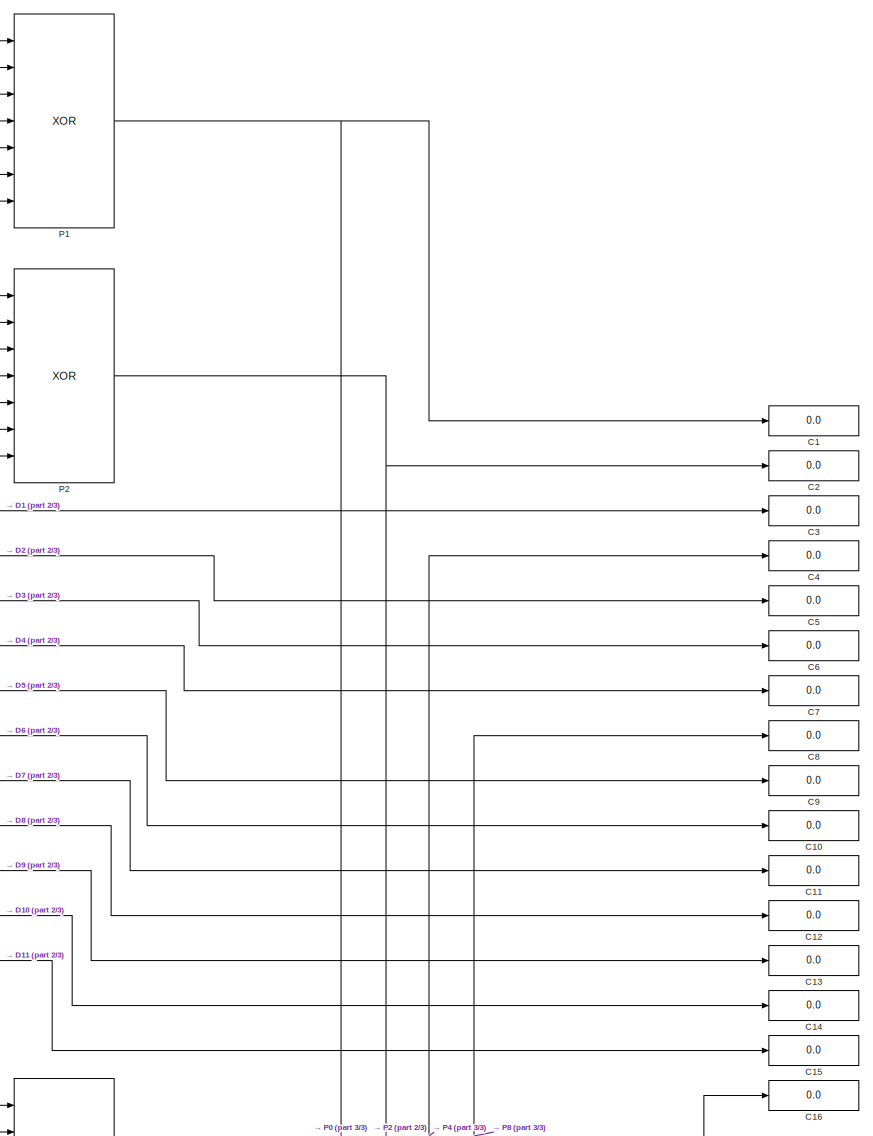
[diagram: root canvas - part 1/3, top right region]
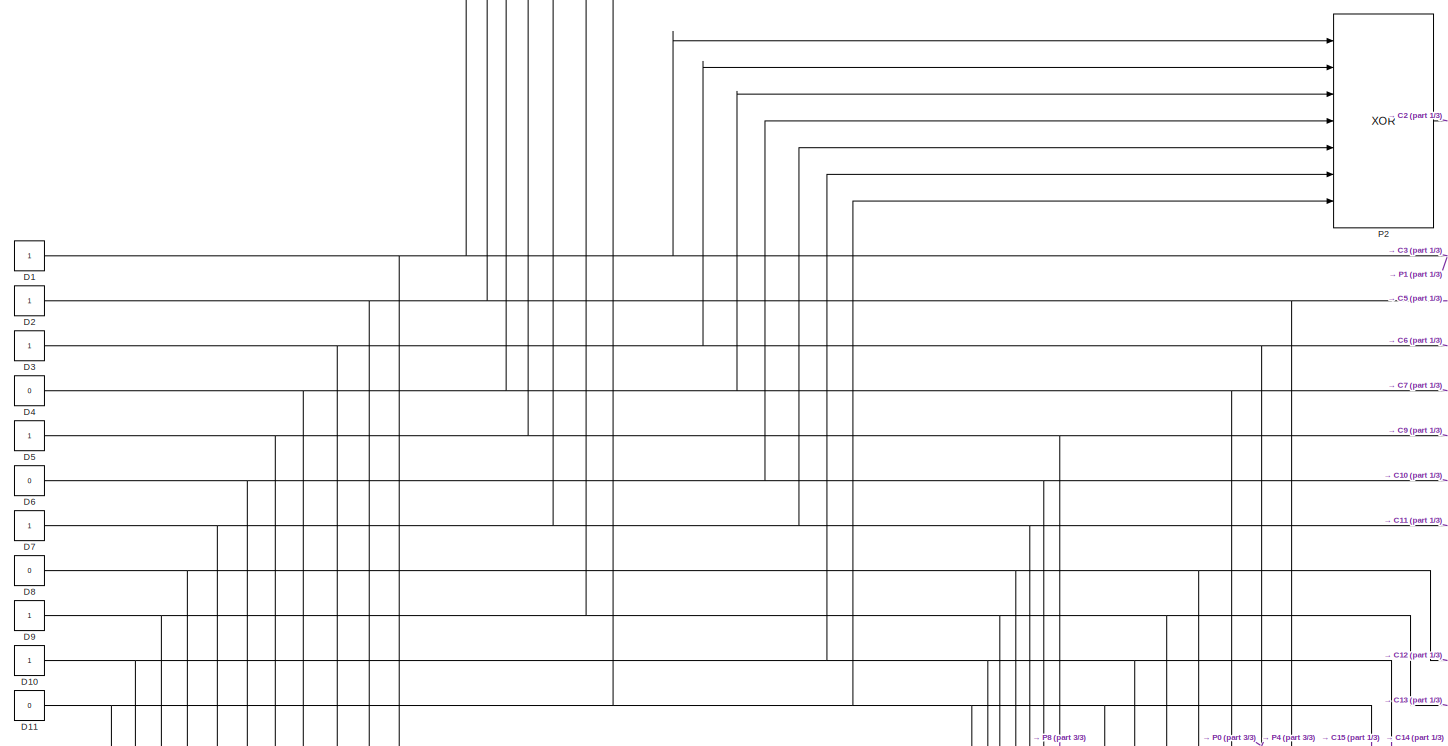
[diagram: root canvas - part 2/3, middle left region]
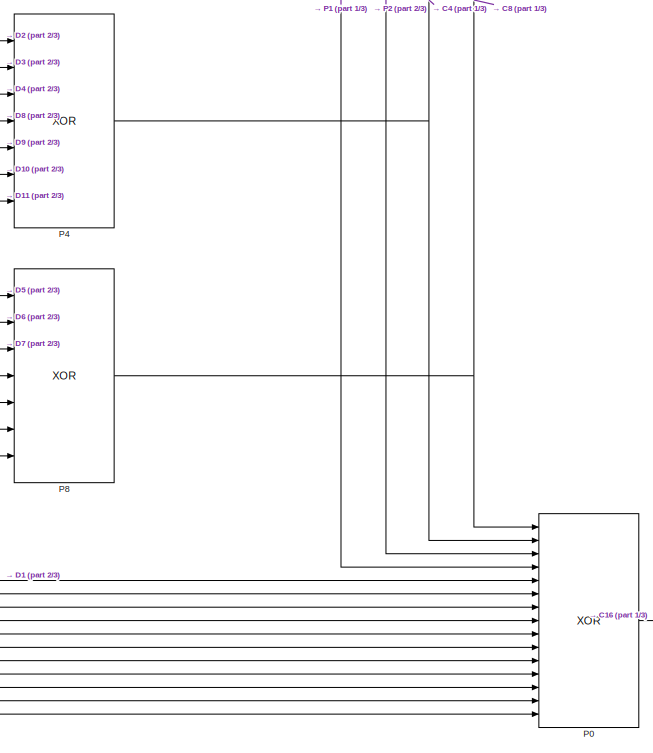
[diagram: root canvas - part 3/3, bottom right region]
MODEL slx_04a06f04f2f7
KIND model
CONFIG AbsTol = auto
CONFIG EnableMultiTasking = off
CONFIG FixedStep = auto
CONFIG MaxStep = auto
CONFIG MinStep = auto
CONFIG RelTol = 1e-3
CONFIG SampleTimeConstraint = Unconstrained
CONFIG Solver = VariableStepAuto
CONFIG SolverName = VariableStepAuto
CONFIG StartTime = 0.0
CONFIG StopTime = 10.0
BLOCK [Display] C1
  Decimation = 1
  Ports = [1]
BLOCK [Display] C10
  Decimation = 1
  Ports = [1]
BLOCK [Display] C11
  Decimation = 1
  Ports = [1]
BLOCK [Display] C12
  Decimation = 1
  Ports = [1]
BLOCK [Display] C13
  Decimation = 1
  Ports = [1]
BLOCK [Display] C14
  Decimation = 1
  Ports = [1]
BLOCK [Display] C15
  Decimation = 1
  Ports = [1]
BLOCK [Display] C16
  Decimation = 1
  Ports = [1]
BLOCK [Display] C2
  Decimation = 1
  Ports = [1]
BLOCK [Display] C3
  Decimation = 1
  Ports = [1]
BLOCK [Display] C4
  Decimation = 1
  Ports = [1]
BLOCK [Display] C5
  Decimation = 1
  Ports = [1]
BLOCK [Display] C6
  Decimation = 1
  Ports = [1]
BLOCK [Display] C7
  Decimation = 1
  Ports = [1]
BLOCK [Display] C8
  Decimation = 1
  Ports = [1]
BLOCK [Display] C9
  Decimation = 1
  Ports = [1]
BLOCK [Constant] D1
  OutDataTypeStr = boolean
BLOCK [Constant] D10
  OutDataTypeStr = boolean
BLOCK [Constant] D11
  OutDataTypeStr = boolean
  Value = 0
BLOCK [Constant] D2
  OutDataTypeStr = boolean
BLOCK [Constant] D3
  OutDataTypeStr = boolean
BLOCK [Constant] D4
  OutDataTypeStr = boolean
  Value = 0
BLOCK [Constant] D5
  OutDataTypeStr = boolean
BLOCK [Constant] D6
  OutDataTypeStr = boolean
  Value = 0
BLOCK [Constant] D7
  OutDataTypeStr = boolean
BLOCK [Constant] D8
  OutDataTypeStr = boolean
  Value = 0
BLOCK [Constant] D9
  OutDataTypeStr = boolean
BLOCK [Logic] P0
  AllPortsSameDT = off
  Inputs = 15
  Operator = XOR
  OutDataTypeStr = boolean
  Ports = [15, 1]
BLOCK [Logic] P1
  AllPortsSameDT = off
  Inputs = 7
  Operator = XOR
  OutDataTypeStr = boolean
  Ports = [7, 1]
BLOCK [Logic] P2
  AllPortsSameDT = off
  Inputs = 7
  Operator = XOR
  OutDataTypeStr = boolean
  Ports = [7, 1]
BLOCK [Logic] P4
  AllPortsSameDT = off
  Inputs = 7
  Operator = XOR
  OutDataTypeStr = boolean
  Ports = [7, 1]
BLOCK [Logic] P8
  AllPortsSameDT = off
  Inputs = 7
  Operator = XOR
  OutDataTypeStr = boolean
  Ports = [7, 1]
NET D10:1 -> C14:1, P0:14, P2:6, P4:6, P8:6
NET D11:1 -> C15:1, P0:15, P1:7, P2:7, P4:7, P8:7
NET D1:1 -> C3:1, P0:5, P1:1, P2:1
NET D2:1 -> C5:1, P0:6, P1:2, P4:1
NET D3:1 -> C6:1, P0:7, P2:2, P4:2
NET D4:1 -> C7:1, P0:8, P1:3, P2:3, P4:3
NET D5:1 -> C9:1, P0:9, P1:4, P8:1
NET D6:1 -> C10:1, P0:10, P2:4, P8:2
NET D7:1 -> C11:1, P0:11, P1:5, P2:5, P8:3
NET D8:1 -> C12:1, P0:12, P4:4, P8:4
NET D9:1 -> C13:1, P0:13, P1:6, P4:5, P8:5
LINE P0:1 -> C16:1
NET P1:1 -> C1:1, P0:4
NET P2:1 -> C2:1, P0:3
NET P4:1 -> C4:1, P0:2
NET P8:1 -> C8:1, P0:1
note: NET lines group one-source signal fan-out (src -> all destinations, sorted); 1:1 wires keep LINE
